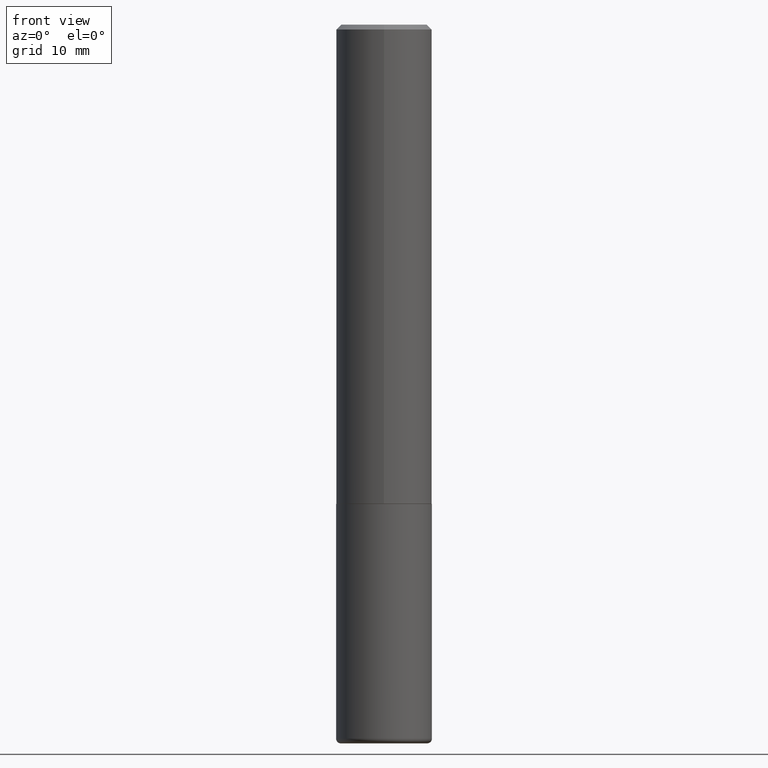
[diagram: clean part render]
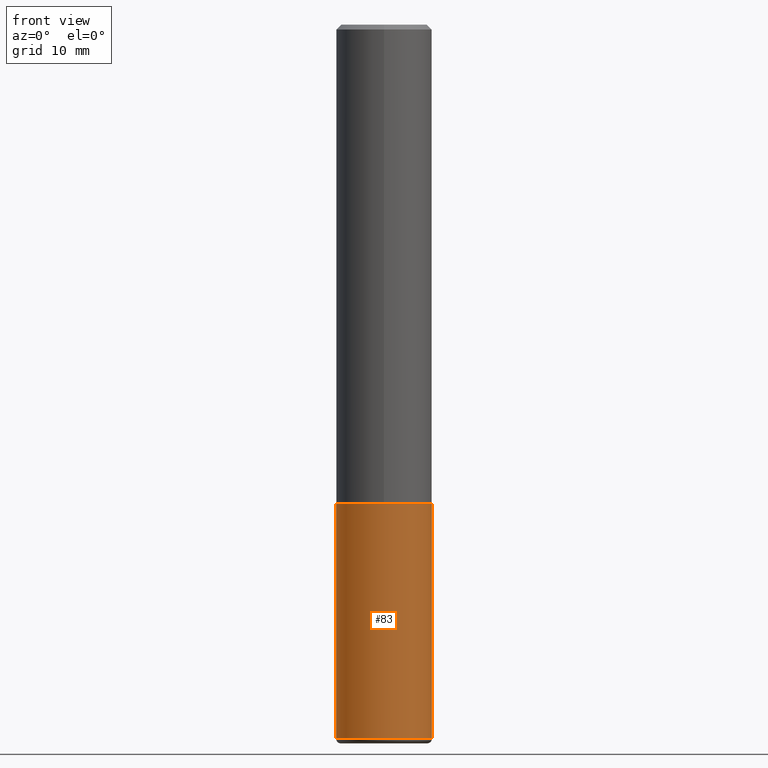
[diagram: same view with one face highlighted and labeled with its STEP entity id]
A machine part, front view. The second image highlights one B-rep face of the part: STEP entity #83.
In plain terms, the highlighted cylindrical surface (partial cylindrical patch) has radius 5 mm, axis along (-0, 0, 1).
Its self-contained STEP definition (entity closure, byte-faithful):
#9 = CARTESIAN_POINT ( 'NONE',  ( 0.000000000000000000, 0.000000000000000000, 0.000000000000000000 ) ) ;
#17 = CIRCLE ( 'NONE', #141, 0.1968500000000000250 ) ;
#18 = CARTESIAN_POINT ( 'NONE',  ( -0.1968500000000000250, -7.158219089893024104E-15, -1.968499999999999694 ) ) ;
#19 = LINE ( 'NONE', #75, #338 ) ;
#22 = VERTEX_POINT ( 'NONE', #365 ) ;
#24 = EDGE_LOOP ( 'NONE', ( #275, #383, #377, #260 ) ) ;
#61 = CIRCLE ( 'NONE', #353, 0.1968499999999999694 ) ;
#72 = FACE_OUTER_BOUND ( 'NONE', #24, .T. ) ;
#74 = CARTESIAN_POINT ( 'NONE',  ( 4.813905344975440714E-29, -6.872981015512730918E-15, -1.968499999999999694 ) ) ;
#75 = CARTESIAN_POINT ( 'NONE',  ( 0.1968499999999999694, -1.374596203102541411E-15, 9.598753983154298056E-30 ) ) ;
#83 = ADVANCED_FACE ( 'NONE', ( #72 ), #296, .T. ) ;
#86 = VERTEX_POINT ( 'NONE', #396 ) ;
#116 = EDGE_CURVE ( 'NONE', #117, #22, #61, .T. ) ;
#117 = VERTEX_POINT ( 'NONE', #164 ) ;
#118 = CARTESIAN_POINT ( 'NONE',  ( -0.1968499999999999694, 1.398703375343756999E-15, -9.682923725166782276E-30 ) ) ;
#141 = AXIS2_PLACEMENT_3D ( 'NONE', #74, #268, #341 ) ;
#159 = DIRECTION ( 'NONE',  ( -2.445468806185136877E-29, 3.491481338843145188E-15, 1.000000000000000000 ) ) ;
#164 = CARTESIAN_POINT ( 'NONE',  ( -0.1968499999999999417, -8.842160539617071922E-15, -2.933100000000000041 ) ) ;
#193 = DIRECTION ( 'NONE',  ( 1.000000000000000000, -6.982962677686269866E-15, 0.000000000000000000 ) ) ;
#199 = DIRECTION ( 'NONE',  ( -2.445468806185136597E-29, 3.491481338843145583E-15, 1.000000000000000000 ) ) ;
#200 = EDGE_CURVE ( 'NONE', #22, #86, #19, .T. ) ;
#203 = VECTOR ( 'NONE', #159, 39.37007874015748143 ) ;
#218 = LINE ( 'NONE', #118, #203 ) ;
#223 = EDGE_CURVE ( 'NONE', #308, #86, #17, .T. ) ;
#236 = CARTESIAN_POINT ( 'NONE',  ( 7.172804555421624566E-29, -1.024086391496083050E-14, -2.933100000000000041 ) ) ;
#260 = ORIENTED_EDGE ( 'NONE', *, *, #223, .F. ) ;
#268 = DIRECTION ( 'NONE',  ( -2.445468806185136597E-29, 3.491481338843145583E-15, 1.000000000000000000 ) ) ;
#275 = ORIENTED_EDGE ( 'NONE', *, *, #404, .F. ) ;
#296 = CYLINDRICAL_SURFACE ( 'NONE', #360, 0.1968499999999999694 ) ;
#308 = VERTEX_POINT ( 'NONE', #18 ) ;
#320 = DIRECTION ( 'NONE',  ( -2.445468806185136597E-29, 3.491481338843145583E-15, 1.000000000000000000 ) ) ;
#338 = VECTOR ( 'NONE', #369, 39.37007874015748143 ) ;
#341 = DIRECTION ( 'NONE',  ( 1.000000000000000000, -6.982962677686267499E-15, 0.000000000000000000 ) ) ;
#353 = AXIS2_PLACEMENT_3D ( 'NONE', #236, #199, #193 ) ;
#360 = AXIS2_PLACEMENT_3D ( 'NONE', #9, #320, #394 ) ;
#365 = CARTESIAN_POINT ( 'NONE',  ( 0.1968499999999999417, -1.161546011806337053E-14, -2.933100000000000041 ) ) ;
#369 = DIRECTION ( 'NONE',  ( -2.445468806185136877E-29, 3.491481338843145188E-15, 1.000000000000000000 ) ) ;
#377 = ORIENTED_EDGE ( 'NONE', *, *, #200, .T. ) ;
#383 = ORIENTED_EDGE ( 'NONE', *, *, #116, .T. ) ;
#394 = DIRECTION ( 'NONE',  ( 1.000000000000000000, -6.982962677686266711E-15, 4.876176775795935793E-29 ) ) ;
#396 = CARTESIAN_POINT ( 'NONE',  ( 0.1968500000000000250, -8.247577218615273316E-15, -1.968499999999999694 ) ) ;
#404 = EDGE_CURVE ( 'NONE', #117, #308, #218, .T. ) ;